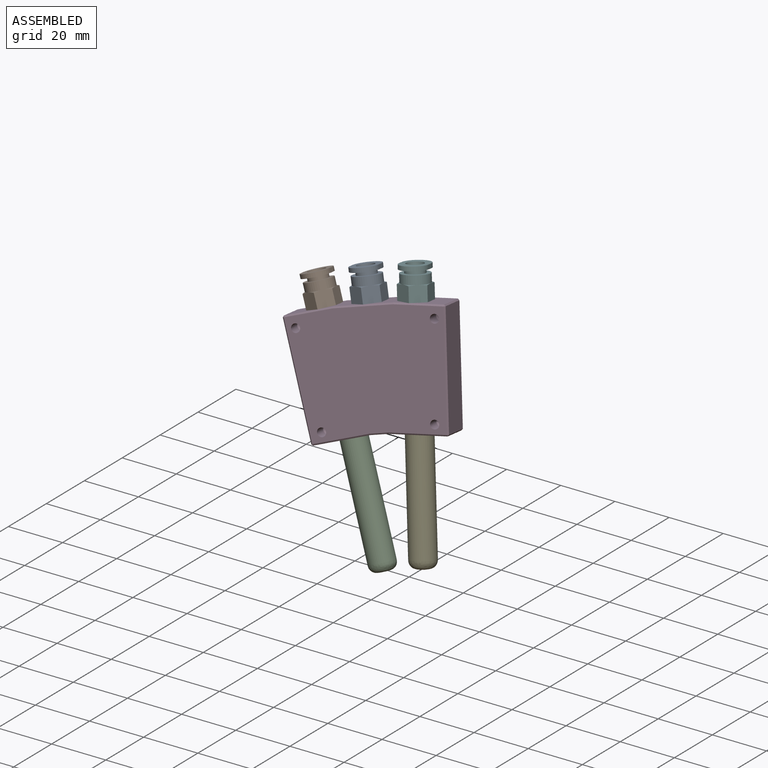
[diagram: assembled view]
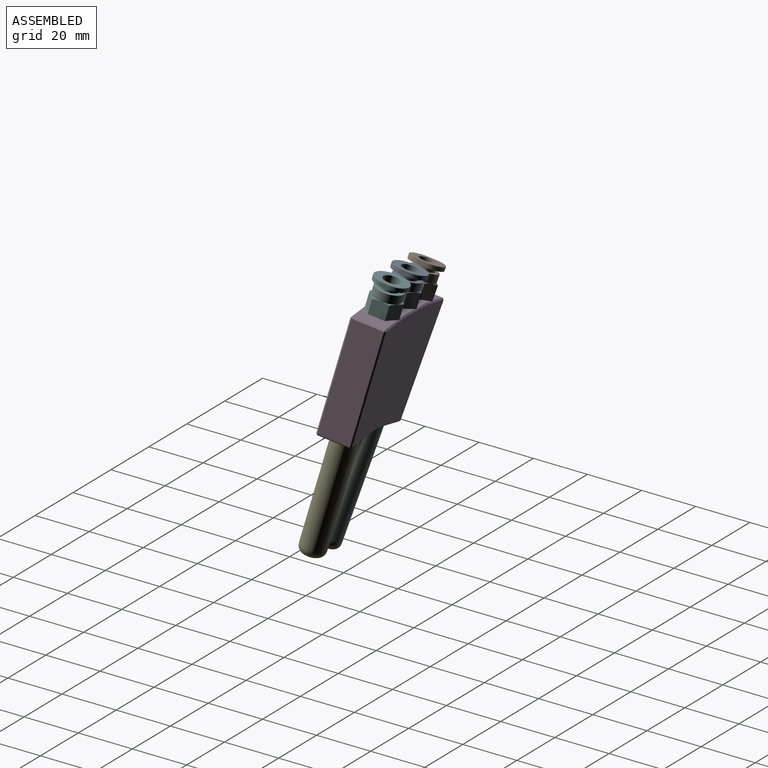
[diagram: assembled view, second angle]
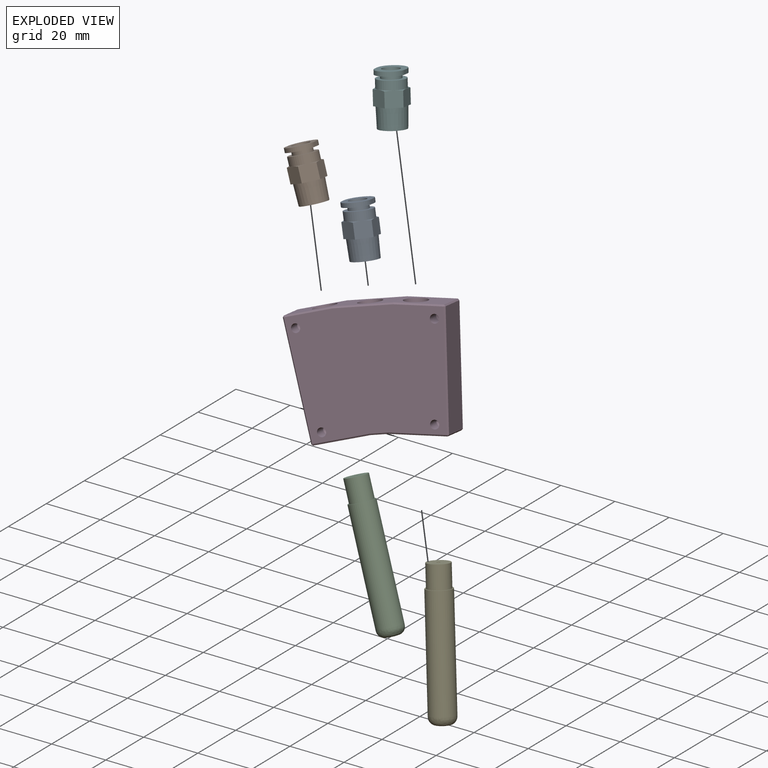
[diagram: exploded view]
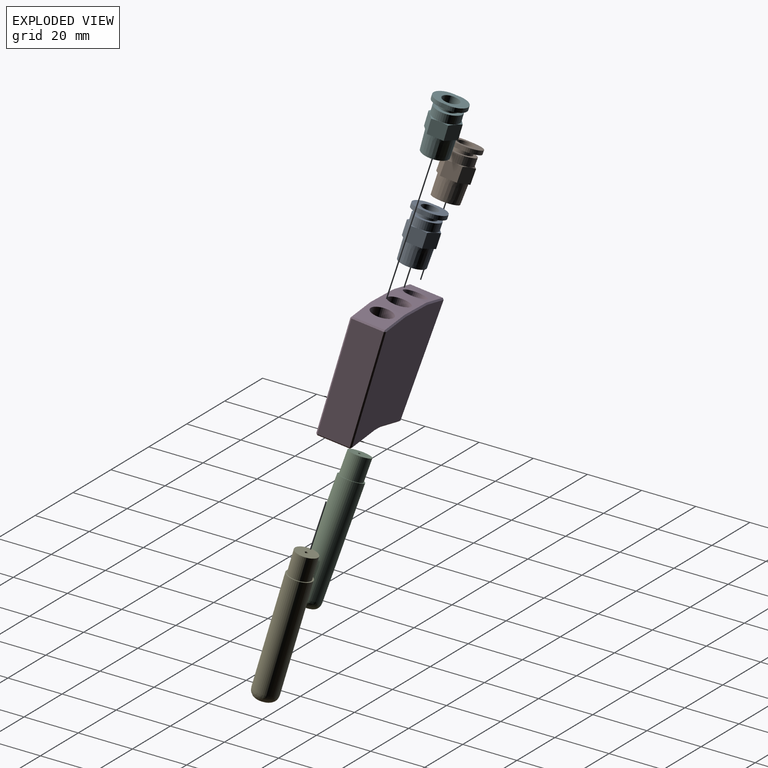
[diagram: exploded view, second angle]
ASSEMBLY  parts=6 mates=5
PART A: 27 faces, bbox 12x18.8x12.4 mm
  f0: plane 9.53x9.53mm, normal (0,-1,0), area 71.4mm2, adj f1
  f1: cone r=0mm half-angle=1.8deg, axis (0,1,0), area 217.7mm2, adj f0,f2
  f2: plane 11.55x10mm, normal (0,-1,0), area 8.4mm2, adj f1,f3,f4,f5,f6,f7,f8
  f3: plane 6.2x5.83mm, normal (1,0,0), area 30.8mm2, adj f2,f4,f8,f9,f10
  f4: plane 5.83x5.43mm, normal (0.5,0,-0.87), area 30.8mm2, adj f2,f3,f5,f10,f11
  f5: plane 5.83x5.43mm, normal (-0.5,0,-0.87), area 30.8mm2, adj f2,f4,f6,f11,f12
  f6: plane 6.2x5.83mm, normal (-1,0,0), area 30.8mm2, adj f2,f5,f7,f12,f13
  f7: plane 5.83x5.43mm, normal (-0.5,0,0.87), area 30.8mm2, adj f2,f6,f8,f13,f14
  f8: plane 5.83x5.43mm, normal (0.5,0,0.87), area 30.8mm2, adj f2,f3,f7,f9,f14
  f9: cone r=0mm half-angle=75deg, axis (0,-1,0), area 2.2mm2, adj f3,f8,f15
  f10: cone r=0mm half-angle=75deg, axis (0,-1,0), area 2.2mm2, adj f3,f4,f15
  f11: cone r=0mm half-angle=75deg, axis (0,-1,0), area 2.2mm2, adj f4,f5,f15
  f12: cone r=0mm half-angle=75deg, axis (0,-1,0), area 2.2mm2, adj f5,f6,f15
  f13: cone r=0mm half-angle=75deg, axis (0,-1,0), area 2.2mm2, adj f6,f7,f15
  f14: cone r=0mm half-angle=75deg, axis (0,-1,0), area 2.2mm2, adj f7,f8,f15
  f15: plane 10x10mm, normal (0,1,0), area 1.6mm2, adj f9,f10,f11,f12,f13,f14,f16
  f16: cylinder r=4.95mm len=9.9mm, axis (0,-1,0), area 93.3mm2, adj f15,f18
  f17: plane 6x6mm, normal (0,1,0), area 28.3mm2, adj f19
  f18: plane 9.9x9.9mm, normal (0,1,0), area 40.7mm2, adj f16,f21
  f19: cylinder r=3mm len=13.3mm, axis (0,-1,0), area 250.7mm2, adj f17,f23
  f20: plane 2.3x1.5mm, normal (1,0,0), area 3.4mm2, adj f22,f23,f24,f26
  f21: cylinder r=3.4mm len=6.8mm, axis (0,-1,0), area 29.9mm2, adj f18,f24
  f22: cylinder r=4.85mm len=9.7mm, axis (0,-1,0), area 22.9mm2, adj f20,f23,f24,f25
  f23: plane 12x9.7mm, normal (0,1,0), area 67.9mm2, adj f19,f20,f22,f25,f26
  f24: plane 12x9.7mm, normal (0,-1,0), area 59.9mm2, adj f20,f21,f22,f25,f26
  f25: plane 2.3x1.5mm, normal (-1,0,0), area 3.4mm2, adj f22,f23,f24,f26
  f26: cylinder r=4.85mm len=9.7mm, axis (0,-1,0), area 22.9mm2, adj f20,f23,f24,f25
PART B: same geometry as A
PART C: 7 faces, bbox 9.2x50x9.2 mm
  f0: cylinder r=4.5mm len=39mm, axis (0,-1,0), area 1102.7mm2, adj f2,f6
  f1: plane 3x3mm, normal (0,1,0), area 5.9mm2, adj f5,f6
  f2: plane 9x9mm, normal (0,-1,0), area 13.4mm2, adj f0,f3
  f3: cylinder r=4mm len=8mm, axis (0,1,0), area 201.1mm2, adj f2,f4
  f4: plane 8x8mm, normal (0,-1,0), area 49.1mm2, adj f3,f5
  f5: cylinder r=0.6mm len=50mm, axis (0,-1,0), area 188.5mm2, adj f1,f4
  f6: bspline ~9.23x9.23mm, area 106.6mm2, adj f0,f1
PART D: 59 faces, bbox 53.7x12x42 mm
  f0: cylinder r=2mm len=22.41mm, axis (0.1,0,0.99), area 277.8mm2, adj f15,f19
  f1: cylinder r=2mm len=22.41mm, axis (-0.1,0,0.99), area 277.8mm2, adj f13,f21
  f2: cylinder r=2mm len=30.8mm, axis (0,0,1), area 387mm2, adj f7,f17
  f3: plane 20x11mm, normal (0,0,1), area 169.7mm2, adj f4,f10,f18,f39,f42
  f4: plane 16.41x11mm, normal (-0.1,0,0.99), area 131.2mm2, adj f3,f22,f43,f46,f47
  f5: plane 39.3x11mm, normal (-0.99,0,-0.1), area 434.6mm2, adj f47,f52,f55,f58
  f6: plane 19.18x11mm, normal (0.1,0,-0.99), area 161.8mm2, adj f7,f14,f53,f54,f58
  f7: plane 11x6mm, normal (0,0,-1), area 53.4mm2, adj f2,f6,f8,f49,f50
  f8: plane 19.18x11mm, normal (-0.1,0,-0.99), area 161.8mm2, adj f7,f16,f36,f44,f45
  f9: plane 39.3x11mm, normal (0.99,0,-0.1), area 434.6mm2, adj f31,f35,f36,f37
  f10: plane 16.41x11mm, normal (0.1,0,0.99), area 131.2mm2, adj f3,f20,f31,f34,f38
  f11: plane 52.71x41.02mm, normal (0,-1,0), area 1892.5mm2, adj f24,f26,f28,f30,f34,f35,f39,f43
  f12: plane 52.71x41.02mm, normal (0,1,0), area 1920.8mm2, adj f37,f38,f42,f45,f46,f50,f54,f55
  f13: cone r=0mm half-angle=59deg, axis (0.1,0,-0.99), area 44mm2, adj f1,f14
  f14: cylinder r=4mm len=8.79mm, axis (0.1,0,-0.99), area 201.1mm2, adj f6,f13
  f15: cone r=0mm half-angle=59deg, axis (-0.1,0,-0.99), area 44mm2, adj f0,f16
  f16: cylinder r=4mm len=8.79mm, axis (-0.1,0,-0.99), area 201.1mm2, adj f8,f15
  f17: cone r=0mm half-angle=59deg, axis (0,0,1), area 44mm2, adj f2,f18
  f18: cylinder r=4mm len=8mm, axis (0,0,1), area 201.1mm2, adj f3,f17
  f19: cone r=0mm half-angle=59deg, axis (0.1,0,0.99), area 44mm2, adj f0,f20
  f20: cylinder r=4mm len=8.79mm, axis (0.1,0,0.99), area 201.1mm2, adj f10,f19
  f21: cone r=0mm half-angle=59deg, axis (-0.1,0,0.99), area 44mm2, adj f1,f22
  f22: cylinder r=4mm len=8.79mm, axis (-0.1,0,0.99), area 201.1mm2, adj f4,f21
  f23: cone r=0mm half-angle=59deg, axis (0,-1,0), area 8.2mm2, adj f24
  f24: cylinder r=1.5mm len=5mm, axis (0,-1,0), area 47.1mm2, adj f11,f23
  f25: cone r=0mm half-angle=59deg, axis (0,-1,0), area 8.2mm2, adj f26
  f26: cylinder r=1.5mm len=5mm, axis (0,-1,0), area 47.1mm2, adj f11,f25
  f27: cone r=0mm half-angle=59deg, axis (0,-1,0), area 8.2mm2, adj f28
  f28: cylinder r=1.5mm len=5mm, axis (0,-1,0), area 47.1mm2, adj f11,f27
  f29: cone r=0mm half-angle=59deg, axis (0,-1,0), area 8.2mm2, adj f30
  f30: cylinder r=1.5mm len=5mm, axis (0,-1,0), area 47.1mm2, adj f11,f29
  f31: plane 11x0.55mm, normal (0.78,0,0.63), area 7.8mm2, adj f9,f10,f32,f33
  f32: plane 0.55x0.5mm, normal (0.63,-0.58,0.51), area 0.2mm2, adj f31,f34,f35
  f33: plane 0.55x0.5mm, normal (0.63,0.58,0.51), area 0.2mm2, adj f31,f37,f38
  f34: plane 16.44x2.22mm, normal (0.07,-0.71,0.7), area 11.7mm2, adj f10,f11,f32,f39
  f35: plane 39.35x4.63mm, normal (0.7,-0.71,-0.07), area 27.9mm2, adj f9,f11,f32,f40
  f36: plane 11x0.55mm, normal (0.63,0,-0.78), area 7.8mm2, adj f8,f9,f40,f41
  f37: plane 39.35x4.63mm, normal (0.7,0.71,-0.07), area 27.9mm2, adj f9,f12,f33,f41
  f38: plane 16.44x2.22mm, normal (0.07,0.71,0.7), area 11.7mm2, adj f10,f12,f33,f42
  f39: plane 20x0.5mm, normal (0,-0.71,0.71), area 14.1mm2, adj f3,f11,f34,f43
  f40: plane 0.55x0.5mm, normal (0.51,-0.58,-0.63), area 0.2mm2, adj f35,f36,f44
  f41: plane 0.55x0.5mm, normal (0.51,0.58,-0.63), area 0.2mm2, adj f36,f37,f45
  f42: plane 20x0.5mm, normal (0,0.71,0.71), area 14.1mm2, adj f3,f12,f38,f46
  f43: plane 16.44x2.22mm, normal (-0.07,-0.71,0.7), area 11.7mm2, adj f4,f11,f39,f48
  f44: plane 19.23x2.52mm, normal (-0.07,-0.71,-0.7), area 13.6mm2, adj f8,f11,f40,f49
  f45: plane 19.23x2.52mm, normal (-0.07,0.71,-0.7), area 13.6mm2, adj f8,f12,f41,f50
  f46: plane 16.44x2.22mm, normal (-0.07,0.71,0.7), area 11.7mm2, adj f4,f12,f42,f51
  f47: plane 11x0.55mm, normal (-0.78,0,0.63), area 7.8mm2, adj f4,f5,f48,f51
  f48: plane 0.55x0.5mm, normal (-0.63,-0.58,0.51), area 0.2mm2, adj f43,f47,f52
  f49: plane 6.05x0.5mm, normal (0,-0.71,-0.71), area 4.3mm2, adj f7,f11,f44,f53
  f50: plane 6.05x0.5mm, normal (0,0.71,-0.71), area 4.3mm2, adj f7,f12,f45,f54
  f51: plane 0.55x0.5mm, normal (-0.63,0.58,0.51), area 0.2mm2, adj f46,f47,f55
  f52: plane 39.35x4.63mm, normal (-0.7,-0.71,-0.07), area 27.9mm2, adj f5,f11,f48,f56
  f53: plane 19.23x2.52mm, normal (0.07,-0.71,-0.7), area 13.6mm2, adj f6,f11,f49,f56
  f54: plane 19.23x2.52mm, normal (0.07,0.71,-0.7), area 13.6mm2, adj f6,f12,f50,f57
  f55: plane 39.35x4.63mm, normal (-0.7,0.71,-0.07), area 27.9mm2, adj f5,f12,f51,f57
  f56: plane 0.55x0.5mm, normal (-0.51,-0.58,-0.63), area 0.2mm2, adj f52,f53,f58
  f57: plane 0.55x0.5mm, normal (-0.51,0.58,-0.63), area 0.2mm2, adj f54,f55,f58
  f58: plane 11x0.55mm, normal (-0.63,0,-0.78), area 7.8mm2, adj f5,f6,f56,f57
PART E: same geometry as C
PART F: same geometry as A
PLACE A rot(axis=(0.96,-0.01,0.27),80deg) t=(-68.4,-4.79,62.55)mm
PLACE B rot(axis=(0.94,-0.06,0.32),81.8deg) t=(-82.05,-8.61,58.79)mm
PLACE C rot(axis=(-0.96,-0.27,-0.05),103.6deg) t=(-68.61,-13.94,25.27)mm
PLACE D rot(axis=(-0.52,-0.63,0.58),23.2deg) t=(-62.25,-8.72,41.1)mm
PLACE E rot(axis=(-0.99,-0.17,0.03),103.5deg) t=(-48.2,-8.42,30.1)mm
PLACE F rot(axis=(0.98,0.04,0.21),78.6deg) t=(-54.47,-1.14,65.33)mm
MATE fastened C.f0 <-> D.f14  axis (-0.37,0.15,0.92) through (-68.61,-13.94,25.27)mm
MATE fastened D.f14 <-> B.f19  axis (-0.37,0.15,0.92) through (-83.53,-8.03,62.46)mm
MATE fastened D.f16 <-> E.f0  axis (0.17,-0.2,-0.96) through (-48.2,-8.42,30.1)mm
MATE fastened D.f2 <-> A.f19  axis (-0.27,0.17,0.95) through (-69.48,-4.09,66.33)mm
MATE fastened D.f16 <-> F.f19  axis (-0.17,0.2,0.96) through (-55.15,-0.34,69.19)mm
